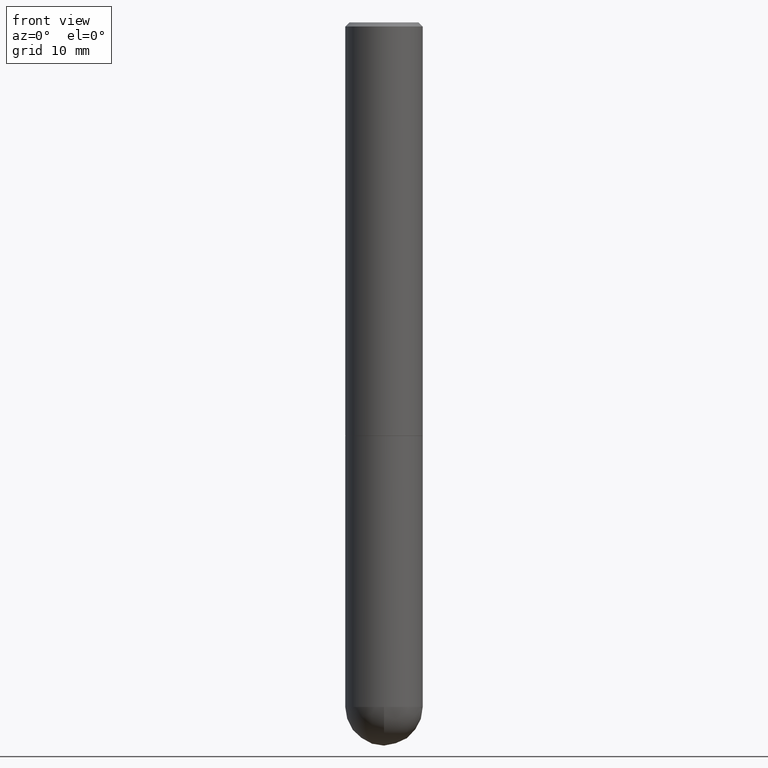
[diagram: clean part render]
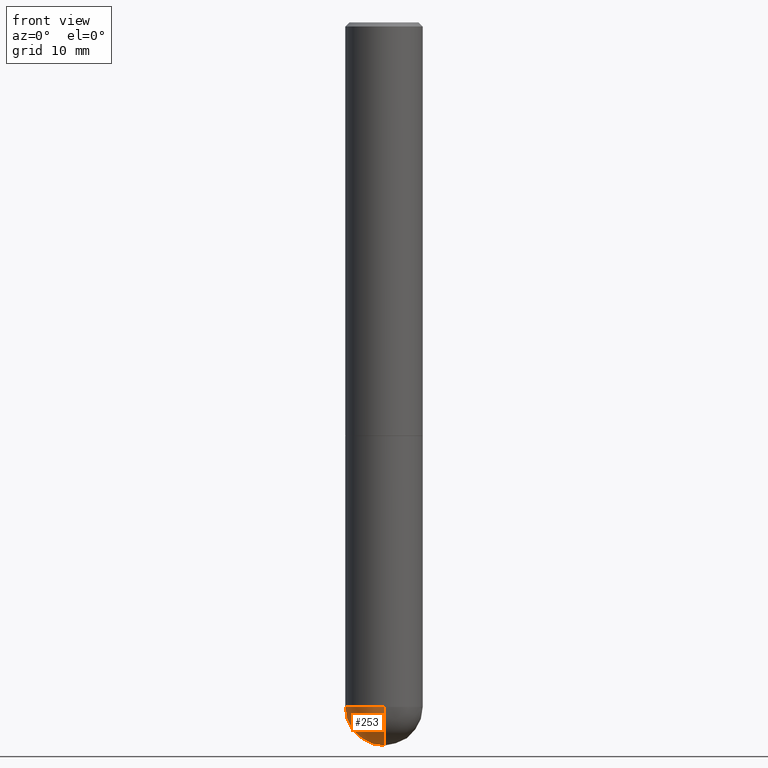
[diagram: same view with one face highlighted and labeled with its STEP entity id]
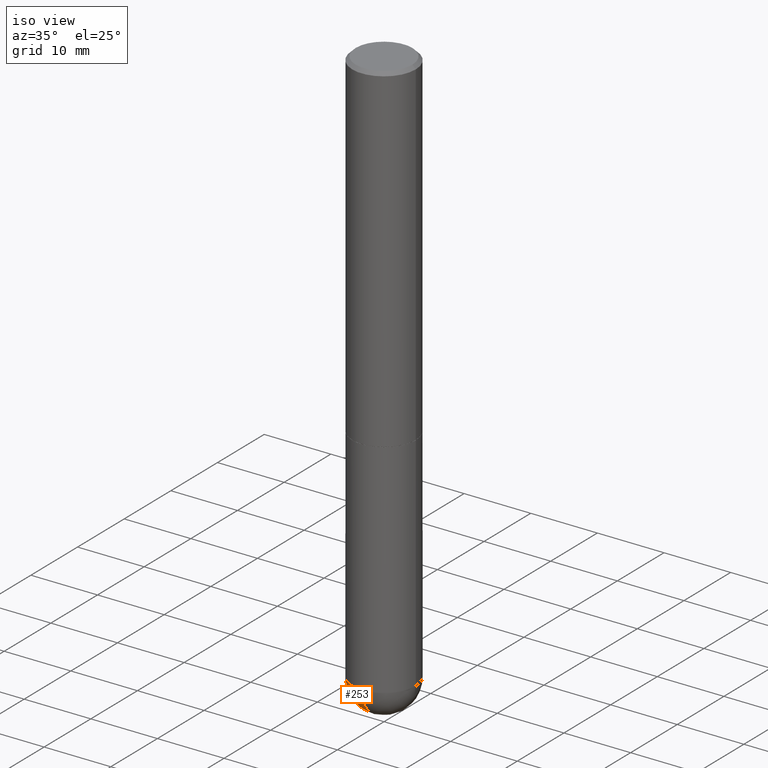
[diagram: same view with one face highlighted and labeled with its STEP entity id]
A machine part, front view. The second image highlights one B-rep face of the part: STEP entity #253.
A second angle (iso view) of the same face is appended — the face is thin or edge-on in the first view.
In plain terms, the highlighted spherical surface has radius 4.7625 mm.
Its self-contained STEP definition (entity closure, byte-faithful):
#2 = CARTESIAN_POINT ( 'NONE',  ( 8.100615420488263856E-29, -1.156553193491791947E-14, -3.312499999999999556 ) ) ;
#21 = VERTEX_POINT ( 'NONE', #279 ) ;
#25 = CARTESIAN_POINT ( 'NONE',  ( 7.769495642574377609E-29, -1.203971430305797135E-14, -3.312499999999999556 ) ) ;
#44 = AXIS2_PLACEMENT_3D ( 'NONE', #2, #371, #90 ) ;
#47 = ORIENTED_EDGE ( 'NONE', *, *, #96, .F. ) ;
#53 = AXIS2_PLACEMENT_3D ( 'NONE', #363, #278, #334 ) ;
#57 = CARTESIAN_POINT ( 'NONE',  ( -0.1874999999999999722, -7.941979676751917864E-15, -3.312499999999999556 ) ) ;
#76 = DIRECTION ( 'NONE',  ( 6.982962677686266711E-15, 1.000000000000000000, 0.000000000000000000 ) ) ;
#82 = EDGE_CURVE ( 'NONE', #266, #104, #172, .T. ) ;
#90 = DIRECTION ( 'NONE',  ( 1.000000000000000000, -6.982962677686263555E-15, 0.000000000000000000 ) ) ;
#96 = EDGE_CURVE ( 'NONE', #21, #266, #359, .T. ) ;
#104 = VERTEX_POINT ( 'NONE', #57 ) ;
#110 = DIRECTION ( 'NONE',  ( 1.000000000000000000, -6.982962677686265922E-15, 4.883557194083112340E-29 ) ) ;
#116 = DIRECTION ( 'NONE',  ( -1.000000000000000000, 7.105427357601001070E-15, -4.926315508542082329E-29 ) ) ;
#151 = EDGE_CURVE ( 'NONE', #21, #236, #249, .T. ) ;
#152 = DIRECTION ( 'NONE',  ( -1.000000000000000000, 6.982962677686266711E-15, -4.883557194083112340E-29 ) ) ;
#172 = CIRCLE ( 'NONE', #53, 0.1874999999999999722 ) ;
#178 = ORIENTED_EDGE ( 'NONE', *, *, #151, .T. ) ;
#197 = EDGE_LOOP ( 'NONE', ( #47, #178, #213, #380 ) ) ;
#201 = CARTESIAN_POINT ( 'NONE',  ( -1.332267629550109160E-15, -0.1875000000000119349, -3.312499999999999112 ) ) ;
#213 = ORIENTED_EDGE ( 'NONE', *, *, #338, .F. ) ;
#221 = DIRECTION ( 'NONE',  ( 6.982962677686266711E-15, 1.000000000000000000, -2.913971193241876428E-15 ) ) ;
#224 = DIRECTION ( 'NONE',  ( -7.105427357601001070E-15, -1.000000000000000000, 0.000000000000000000 ) ) ;
#236 = VERTEX_POINT ( 'NONE', #201 ) ;
#242 = CIRCLE ( 'NONE', #44, 0.1874999999999999722 ) ;
#249 = CIRCLE ( 'NONE', #412, 0.1875000000000002776 ) ;
#253 = ADVANCED_FACE ( 'NONE', ( #401 ), #340, .T. ) ;
#266 = VERTEX_POINT ( 'NONE', #403 ) ;
#278 = DIRECTION ( 'NONE',  ( -2.445468806185136597E-29, 3.491481338843145583E-15, 1.000000000000000000 ) ) ;
#279 = CARTESIAN_POINT ( 'NONE',  ( 8.236038227695147558E-29, -1.268288599034905401E-14, -3.500000000000000000 ) ) ;
#317 = CARTESIAN_POINT ( 'NONE',  ( 7.769495642574377609E-29, -1.203971430305797135E-14, -3.312499999999999556 ) ) ;
#334 = DIRECTION ( 'NONE',  ( 1.000000000000000000, -6.982962677686263555E-15, 0.000000000000000000 ) ) ;
#338 = EDGE_CURVE ( 'NONE', #104, #236, #242, .T. ) ;
#340 = SPHERICAL_SURFACE ( 'NONE', #369, 0.1875000000000002776 ) ;
#359 = CIRCLE ( 'NONE', #397, 0.1875000000000002776 ) ;
#363 = CARTESIAN_POINT ( 'NONE',  ( 8.100615420488263856E-29, -1.156553193491791947E-14, -3.312499999999999556 ) ) ;
#369 = AXIS2_PLACEMENT_3D ( 'NONE', #25, #152, #221 ) ;
#371 = DIRECTION ( 'NONE',  ( -2.445468806185136597E-29, 3.491481338843145583E-15, 1.000000000000000000 ) ) ;
#380 = ORIENTED_EDGE ( 'NONE', *, *, #82, .F. ) ;
#394 = CARTESIAN_POINT ( 'NONE',  ( 7.769495642574377609E-29, -1.203971430305797135E-14, -3.312499999999999556 ) ) ;
#397 = AXIS2_PLACEMENT_3D ( 'NONE', #394, #110, #76 ) ;
#401 = FACE_OUTER_BOUND ( 'NONE', #197, .T. ) ;
#403 = CARTESIAN_POINT ( 'NONE',  ( 1.309305502066255275E-15, 0.1874999999999883149, -3.312500000000000444 ) ) ;
#412 = AXIS2_PLACEMENT_3D ( 'NONE', #317, #116, #224 ) ;